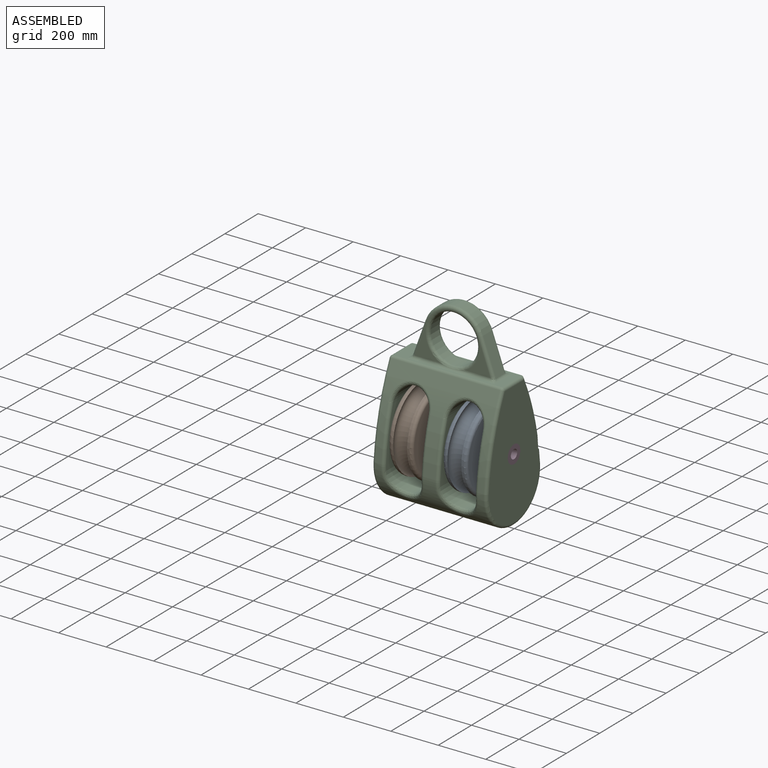
[diagram: assembled view]
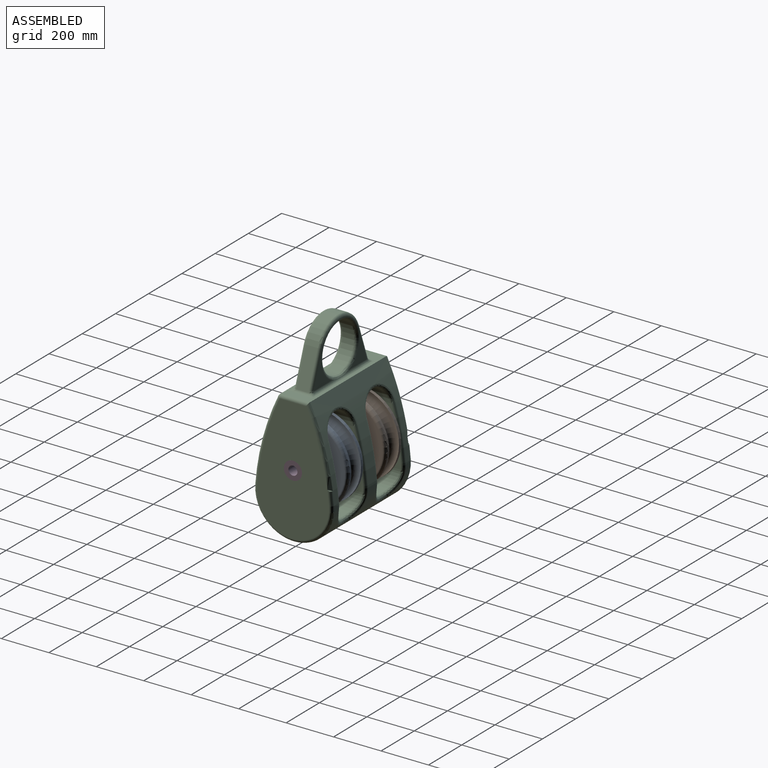
[diagram: assembled view, second angle]
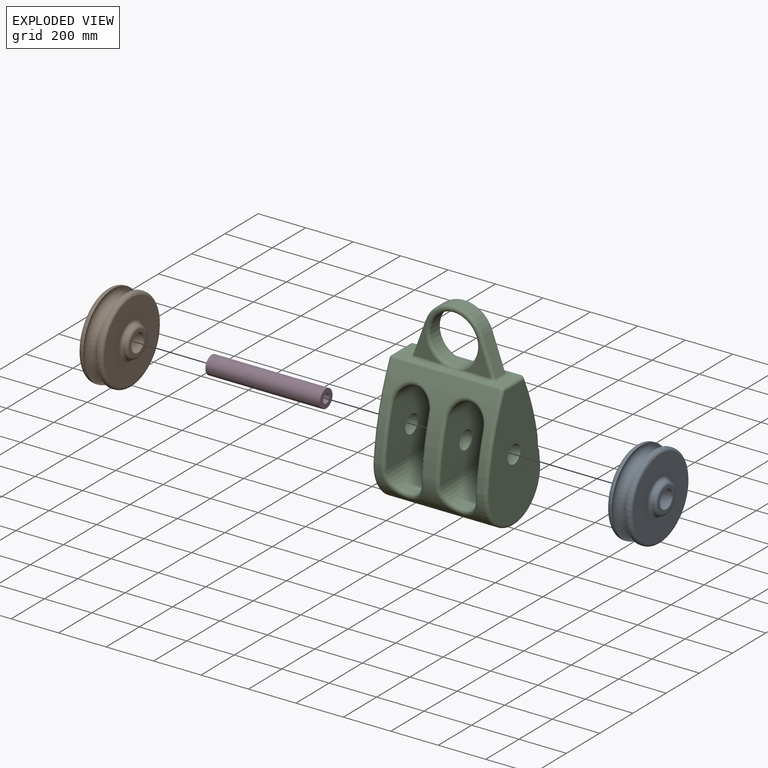
[diagram: exploded view]
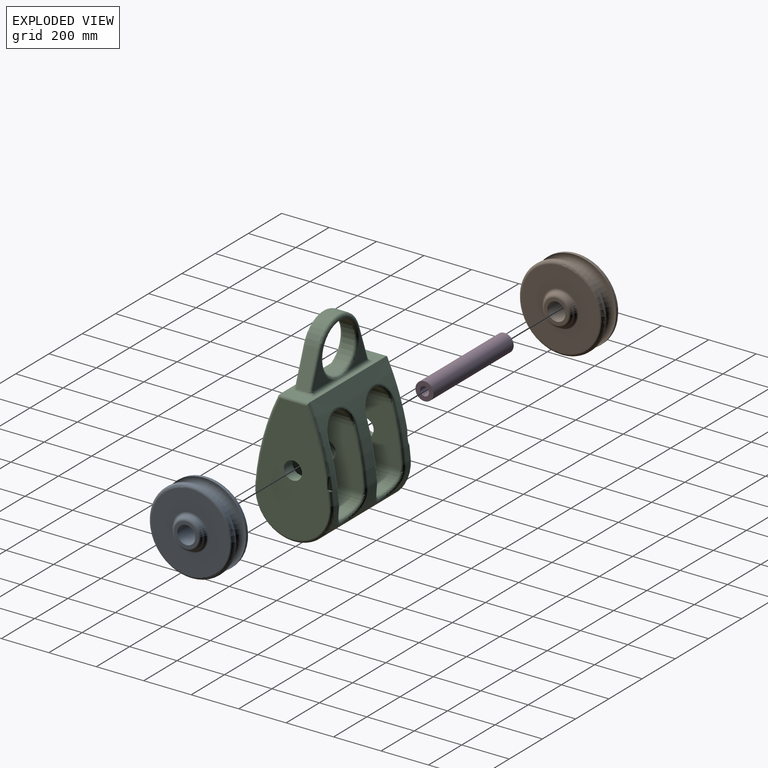
[diagram: exploded view, second angle]
ASSEMBLY  parts=4 mates=3
PART A: 14 faces, bbox 406.2x152.4x406.2 mm
  f0: cylinder r=177.8mm len=355.6mm, axis (0,-1,0), area 10055.1mm2, adj f7,f8
  f1: plane 330.2x330.2mm, normal (0,-1,0), area 67392.1mm2, adj f8,f10
  f2: plane 101.6x101.6mm, normal (0,-1,0), area 3547mm2, adj f3,f9
  f3: cylinder r=38.1mm len=152.4mm, axis (0,-1,0), area 36482.9mm2, adj f2,f4
  f4: plane 101.6x101.6mm, normal (0,1,0), area 3547mm2, adj f3,f12
  f5: plane 330.2x330.2mm, normal (0,1,0), area 67392.1mm2, adj f11,f13
  f6: cylinder r=177.8mm len=355.6mm, axis (0,-1,0), area 10055.1mm2, adj f7,f13
  f7: torus R=165.1mm, axis (0,-1,0), area 118968.8mm2, adj f0,f6
  f8: torus R=165.1mm, axis (0,1,0), area 21707.7mm2, adj f0,f1
  f9: torus R=50.8mm, axis (0,1,0), area 7380.9mm2, adj f2,f10
  f10: torus R=76.2mm, axis (0,1,0), area 8537.8mm2, adj f1,f9
  f11: torus R=76.2mm, axis (0,1,0), area 8537.8mm2, adj f5,f12
  f12: torus R=50.8mm, axis (0,1,0), area 7380.9mm2, adj f4,f11
  f13: torus R=165.1mm, axis (0,1,0), area 21707.7mm2, adj f5,f6
PART B: same geometry as A
PART C: 80 faces, bbox 482.6x365.1x811.5 mm
  f0: plane 140.69x106.25mm, normal (0,-1,0), area 4521.8mm2, adj f26,f31,f42
  f1: plane 140.69x106.25mm, normal (0,1,0), area 4521.8mm2, adj f27,f30,f36
  f2: plane 457.2x119.06mm, normal (0,0,1), area 16710.3mm2, adj f8,f25,f26,f27,f28,f71,f74,f77
  f3: plane 304.8x241.3mm, normal (1,0,0), area 61575.1mm2, adj f4,f6,f10,f59,f61,f64,f66
  f4: cylinder r=76.2mm len=303.74mm, axis (0,-1,0), area 63341.5mm2, adj f3,f5,f57,f63
  f5: plane 304.8x241.3mm, normal (-1,0,0), area 61575.1mm2, adj f4,f6,f16,f58,f60,f65,f67
  f6: cylinder r=76.2mm len=220.86mm, axis (0,-1,0), area 43397.6mm2, adj f3,f5,f62,f68
  f7: cylinder r=165.1mm len=457.2mm, axis (1,0,0), area 171849.4mm2, adj f8,f9,f45,f46,f47,f51,f52,f53
  f8: cylinder r=1016mm len=457.2mm, axis (1,0,0), area 69246.4mm2, adj f2,f7,f48,f49,f50,f60,f61,f62
  f9: cylinder r=1016mm len=457.2mm, axis (1,0,0), area 65617.6mm2, adj f7,f54,f55,f56,f66,f67,f68,f72
  f10: cylinder r=38.1mm len=76.2mm, axis (1,0,0), area 18241.5mm2, adj f3,f13
  f11: plane 304.8x241.3mm, normal (1,0,0), area 61575.1mm2, adj f12,f14,f15,f47,f49,f52,f54
  f12: cylinder r=76.2mm len=303.74mm, axis (0,-1,0), area 63341.5mm2, adj f11,f13,f45,f51
  f13: plane 304.8x241.3mm, normal (-1,0,0), area 61575.1mm2, adj f10,f12,f14,f46,f48,f53,f55
  f14: cylinder r=76.2mm len=220.86mm, axis (0,-1,0), area 43397.6mm2, adj f11,f13,f50,f56
  f15: cylinder r=38.1mm len=76.2mm, axis (1,0,0), area 12161mm2, adj f11,f18
  f16: cylinder r=38.1mm len=76.2mm, axis (1,0,0), area 12161mm2, adj f5,f17
  f17: plane 520.7x304.8mm, normal (1,0,0), area 117942.9mm2, adj f16,f69,f70,f71,f72
  f18: plane 520.7x304.8mm, normal (-1,0,0), area 117942.9mm2, adj f15,f76,f77,f78,f79
  f19: plane 149.38x54.37mm, normal (-0.94,0,0.34), area 8084.9mm2, adj f22,f28,f34,f35,f40,f41
  f20: plane 149.38x54.37mm, normal (0.94,0,0.34), area 8084.9mm2, adj f22,f25,f36,f37,f42,f43
  f21: cylinder r=101.6mm len=203.2mm, axis (0,1,0), area 32772.4mm2, adj f29,f30,f31,f32
  f22: cylinder r=127mm len=238.68mm, axis (0,1,0), area 15764.2mm2, adj f19,f20,f30,f31
  f23: plane 140.69x106.25mm, normal (0,-1,0), area 4521.8mm2, adj f26,f31,f41
  f24: plane 140.69x106.25mm, normal (0,1,0), area 4521.8mm2, adj f27,f30,f35
  f25: cylinder r=12.7mm len=101.6mm, axis (0,-1,0), area 1151.9mm2, adj f2,f20,f38,f44
  f26: cylinder r=12.7mm len=371.29mm, axis (-1,0,0), area 6294mm2, adj f0,f2,f23,f32,f39,f40,f43,f44
  f27: cylinder r=12.7mm len=371.29mm, axis (1,0,0), area 6294mm2, adj f1,f2,f24,f29,f33,f34,f37,f38
  f28: cylinder r=12.7mm len=101.6mm, axis (0,1,0), area 1151.9mm2, adj f2,f19,f33,f39
  f29: bspline ~116.3x20.47mm, area 1558.3mm2, adj f21,f27,f30
  f30: torus R=114.3mm, axis (0,-1,0), area 17262.4mm2, adj f1,f21,f22,f24,f29,f35,f36
  f31: torus R=114.3mm, axis (0,-1,0), area 17262.4mm2, adj f0,f21,f22,f23,f32,f41,f42
  f32: bspline ~116.3x20.47mm, area 1558.3mm2, adj f21,f26,f31
  f33: bspline ~24.55x24.55mm, area 235.2mm2, adj f27,f28,f34
  f34: bspline ~17.45x15.16mm, area 130.7mm2, adj f19,f27,f33,f35
  f35: cylinder r=12.7mm len=145.04mm, axis (-0.34,0,-0.94), area 2986.8mm2, adj f19,f24,f30,f34
  f36: cylinder r=12.7mm len=145.04mm, axis (-0.34,0,0.94), area 2986.8mm2, adj f1,f20,f30,f37
  f37: bspline ~17.45x15.16mm, area 130.7mm2, adj f20,f27,f36,f38
  f38: bspline ~24.55x24.55mm, area 235.2mm2, adj f25,f27,f37
  f39: bspline ~24.55x24.55mm, area 235.2mm2, adj f26,f28,f40
  f40: bspline ~17.45x15.16mm, area 130.7mm2, adj f19,f26,f39,f41
  f41: cylinder r=12.7mm len=145.04mm, axis (0.34,0,0.94), area 2986.8mm2, adj f19,f23,f31,f40
  f42: cylinder r=12.7mm len=145.04mm, axis (0.34,0,-0.94), area 2986.8mm2, adj f0,f20,f31,f43
  f43: bspline ~17.45x15.16mm, area 130.7mm2, adj f20,f26,f42,f44
  f44: bspline ~24.55x24.55mm, area 235.2mm2, adj f25,f26,f43
  f45: bspline ~177.8x106.05mm, area 6617.4mm2, adj f7,f12,f46,f47
  f46: torus R=152.4mm, axis (-1,0,0), area 520.7mm2, adj f7,f13,f45,f48
  f47: torus R=152.4mm, axis (-1,0,0), area 520.7mm2, adj f7,f11,f45,f49
  f48: torus R=1003.3mm, axis (-1,0,0), area 4442.8mm2, adj f8,f13,f46,f50
  f49: torus R=1003.3mm, axis (-1,0,0), area 4442.8mm2, adj f8,f11,f47,f50
  f50: bspline ~177.8x102.49mm, area 5995.4mm2, adj f8,f14,f48,f49
  f51: bspline ~177.8x106.05mm, area 6617.4mm2, adj f7,f12,f52,f53
  f52: torus R=152.4mm, axis (-1,0,0), area 520.7mm2, adj f7,f11,f51,f54
  f53: torus R=152.4mm, axis (-1,0,0), area 520.7mm2, adj f7,f13,f51,f55
  f54: torus R=1003.3mm, axis (-1,0,0), area 4442.8mm2, adj f9,f11,f52,f56
  f55: torus R=1003.3mm, axis (-1,0,0), area 4442.8mm2, adj f9,f13,f53,f56
  f56: bspline ~177.8x102.49mm, area 5995.4mm2, adj f9,f14,f54,f55
  f57: bspline ~177.8x106.05mm, area 6617.4mm2, adj f4,f7,f58,f59
  f58: torus R=152.4mm, axis (-1,0,0), area 520.7mm2, adj f5,f7,f57,f60
  f59: torus R=152.4mm, axis (-1,0,0), area 520.7mm2, adj f3,f7,f57,f61
  f60: torus R=1003.3mm, axis (-1,0,0), area 4442.8mm2, adj f5,f8,f58,f62
  f61: torus R=1003.3mm, axis (-1,0,0), area 4442.8mm2, adj f3,f8,f59,f62
  f62: bspline ~177.8x102.49mm, area 5995.4mm2, adj f6,f8,f60,f61
  f63: bspline ~177.8x106.05mm, area 6617.4mm2, adj f4,f7,f64,f65
  f64: torus R=152.4mm, axis (-1,0,0), area 520.7mm2, adj f3,f7,f63,f66
  f65: torus R=152.4mm, axis (-1,0,0), area 520.7mm2, adj f5,f7,f63,f67
  f66: torus R=1003.3mm, axis (-1,0,0), area 4442.8mm2, adj f3,f9,f64,f68
  f67: torus R=1003.3mm, axis (-1,0,0), area 4442.8mm2, adj f5,f9,f65,f68
  f68: bspline ~177.8x102.49mm, area 5995.4mm2, adj f6,f9,f66,f67
  f69: torus R=1003.3mm, axis (1,0,0), area 7565.3mm2, adj f8,f17,f70,f71
  f70: torus R=152.4mm, axis (1,0,0), area 10565.1mm2, adj f7,f17,f69,f72
  f71: cylinder r=12.7mm len=119.06mm, axis (0,-1,0), area 2317.6mm2, adj f2,f17,f69,f73
  f72: torus R=1003.3mm, axis (1,0,0), area 7463.9mm2, adj f9,f17,f70,f73
  f73: sphere r=12.7mm, area 180.9mm2, adj f71,f72,f74
  f74: cylinder r=12.7mm len=457.2mm, axis (1,0,0), area 6512.8mm2, adj f2,f9,f73,f75
  f75: sphere r=12.7mm, area 180.9mm2, adj f74,f76,f77
  f76: torus R=1003.3mm, axis (1,0,0), area 7463.9mm2, adj f9,f18,f75,f78
  f77: cylinder r=12.7mm len=119.06mm, axis (0,1,0), area 2317.6mm2, adj f2,f18,f75,f79
  f78: torus R=152.4mm, axis (1,0,0), area 10565.1mm2, adj f7,f18,f76,f79
  f79: torus R=1003.3mm, axis (1,0,0), area 7565.3mm2, adj f8,f18,f77,f78
PART D: 7 faces, bbox 482.6x76.2x76.2 mm
  f0: cylinder r=38.1mm len=482.6mm, axis (-1,0,0), area 115529.3mm2, adj f1,f2
  f1: plane 76.2x76.2mm, normal (1,0,0), area 3420.3mm2, adj f0,f5
  f2: plane 76.2x76.2mm, normal (-1,0,0), area 3420.3mm2, adj f0,f3
  f3: cylinder r=19.05mm len=50.8mm, axis (-1,0,0), area 6080.5mm2, adj f2,f4
  f4: cone r=0mm half-angle=59deg, axis (-1,0,0), area 1330.1mm2, adj f3
  f5: cylinder r=19.05mm len=50.8mm, axis (1,0,0), area 6080.5mm2, adj f1,f6
  f6: cone r=0mm half-angle=59deg, axis (1,0,0), area 1330.1mm2, adj f5
PLACE A rot(axis=(0.45,-0.45,0.77),105deg) t=(-122.27,-8.13,422.9)mm
PLACE B rot(axis=(-0.41,-0.41,-0.82),101.6deg) t=(-350.87,-8.13,422.9)mm
PLACE C t=(-236.57,-173.23,422.9)mm fixed
PLACE D t=(-236.57,-8.13,422.9)mm
MATE revolute C.f10 <-> B.f0  axis (-1,0,0) through (-477.87,-8.13,422.9)mm
MATE fastened C.f10 <-> D.f0  axis (-1,0,0) through (-477.87,-8.13,422.9)mm
MATE revolute A.f0 <-> D.f0  axis (1,0,0) through (-46.07,-8.13,422.9)mm
